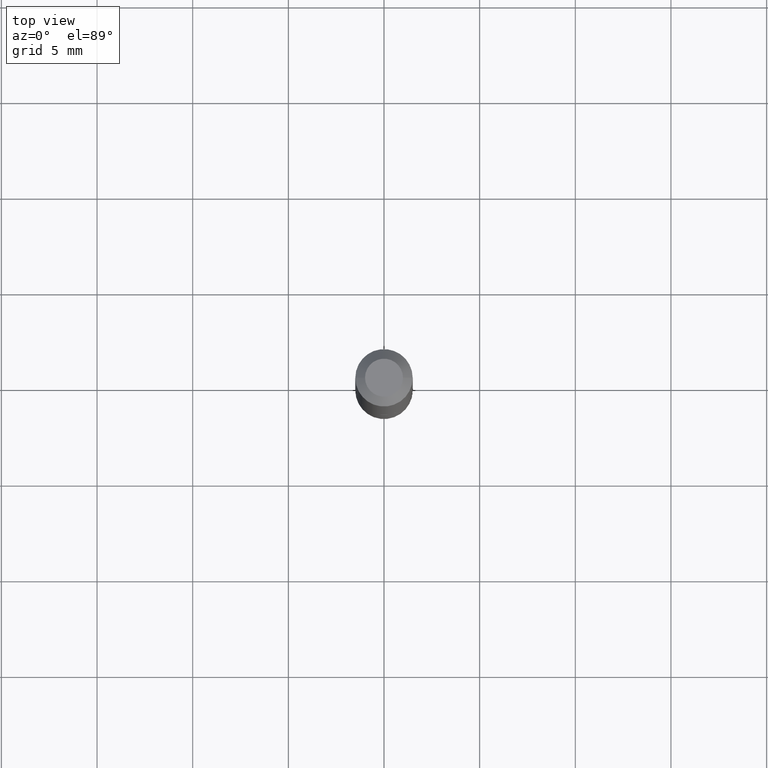
[diagram: clean part render]
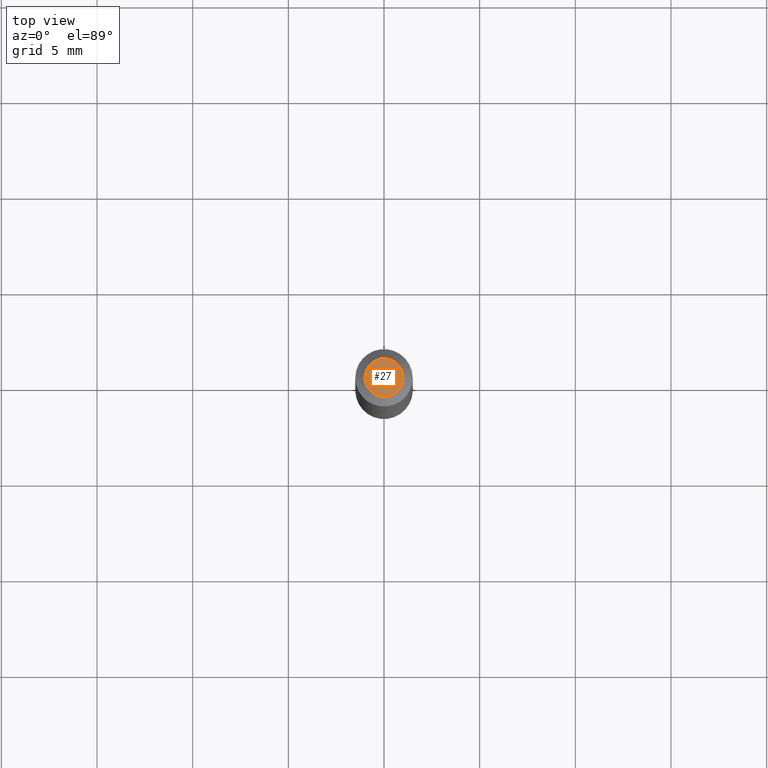
[diagram: same view with one face highlighted and labeled with its STEP entity id]
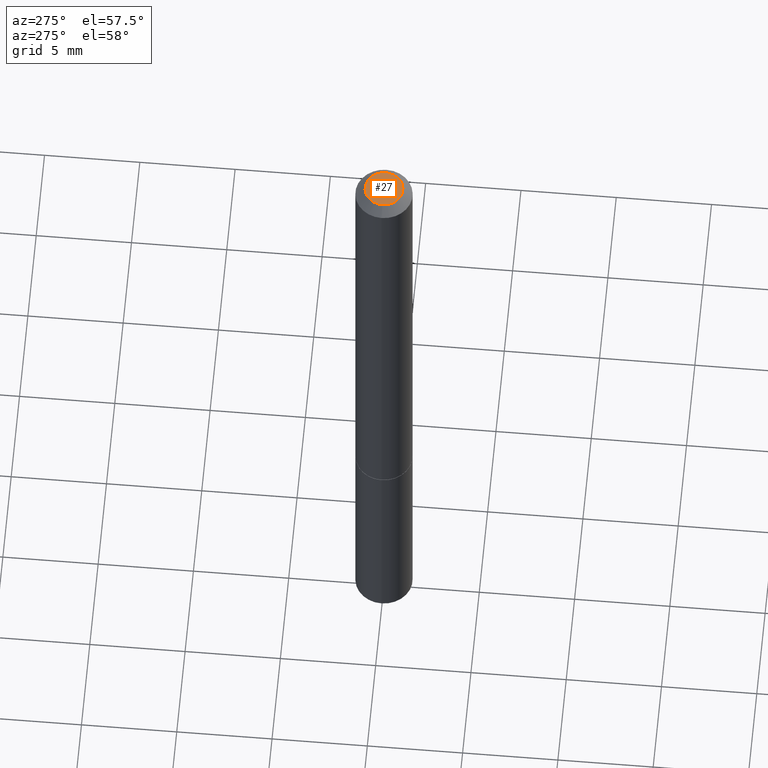
[diagram: same view with one face highlighted and labeled with its STEP entity id]
A machine part, top view. The second image highlights one B-rep face of the part: STEP entity #27.
A second angle (auxiliary view) of the same face is appended — the face is thin or edge-on in the first view.
In plain terms, the highlighted planar face has unit normal (0, -0, -1).
Its self-contained STEP definition (entity closure, byte-faithful):
#27 = ADVANCED_FACE ( 'NONE', ( #208 ), #130, .F. ) ;
#50 = DIRECTION ( 'NONE',  ( 1.000000000000000000, -6.982962677686267499E-15, 4.876176775795935793E-29 ) ) ;
#51 = AXIS2_PLACEMENT_3D ( 'NONE', #357, #358, #50 ) ;
#99 = DIRECTION ( 'NONE',  ( -1.000000000000000000, 6.982962677686265922E-15, -4.876176775795935793E-29 ) ) ;
#127 = ORIENTED_EDGE ( 'NONE', *, *, #191, .T. ) ;
#130 = PLANE ( 'NONE',  #276 ) ;
#134 = CIRCLE ( 'NONE', #51, 0.03904999999999990423 ) ;
#150 = VERTEX_POINT ( 'NONE', #218 ) ;
#156 = CARTESIAN_POINT ( 'NONE',  ( 2.726846925636480279E-16, 0.03904999999999990423, -1.363423462818245070E-16 ) ) ;
#169 = DIRECTION ( 'NONE',  ( -2.445468806185136597E-29, 3.491481338843145583E-15, 1.000000000000000000 ) ) ;
#174 = EDGE_LOOP ( 'NONE', ( #363, #127 ) ) ;
#185 = VERTEX_POINT ( 'NONE', #243 ) ;
#191 = EDGE_CURVE ( 'NONE', #185, #150, #134, .T. ) ;
#199 = CIRCLE ( 'NONE', #333, 0.03904999999999990423 ) ;
#208 = FACE_OUTER_BOUND ( 'NONE', #174, .T. ) ;
#218 = CARTESIAN_POINT ( 'NONE',  ( -0.03904999999999990423, 3.075995059520791347E-16, -2.028933503684348466E-30 ) ) ;
#243 = CARTESIAN_POINT ( 'NONE',  ( 0.03904999999999990423, -3.714222401791242985E-16, 2.251769389232022769E-30 ) ) ;
#275 = CARTESIAN_POINT ( 'NONE',  ( 0.000000000000000000, 0.000000000000000000, 0.000000000000000000 ) ) ;
#276 = AXIS2_PLACEMENT_3D ( 'NONE', #156, #294, #99 ) ;
#294 = DIRECTION ( 'NONE',  ( 2.438088387897960049E-29, -3.491481338843145188E-15, -1.000000000000000000 ) ) ;
#333 = AXIS2_PLACEMENT_3D ( 'NONE', #275, #169, #339 ) ;
#339 = DIRECTION ( 'NONE',  ( 1.000000000000000000, -6.982962677686267499E-15, 4.876176775795935793E-29 ) ) ;
#352 = EDGE_CURVE ( 'NONE', #150, #185, #199, .T. ) ;
#357 = CARTESIAN_POINT ( 'NONE',  ( 0.000000000000000000, 0.000000000000000000, 0.000000000000000000 ) ) ;
#358 = DIRECTION ( 'NONE',  ( -2.445468806185136597E-29, 3.491481338843145583E-15, 1.000000000000000000 ) ) ;
#363 = ORIENTED_EDGE ( 'NONE', *, *, #352, .T. ) ;